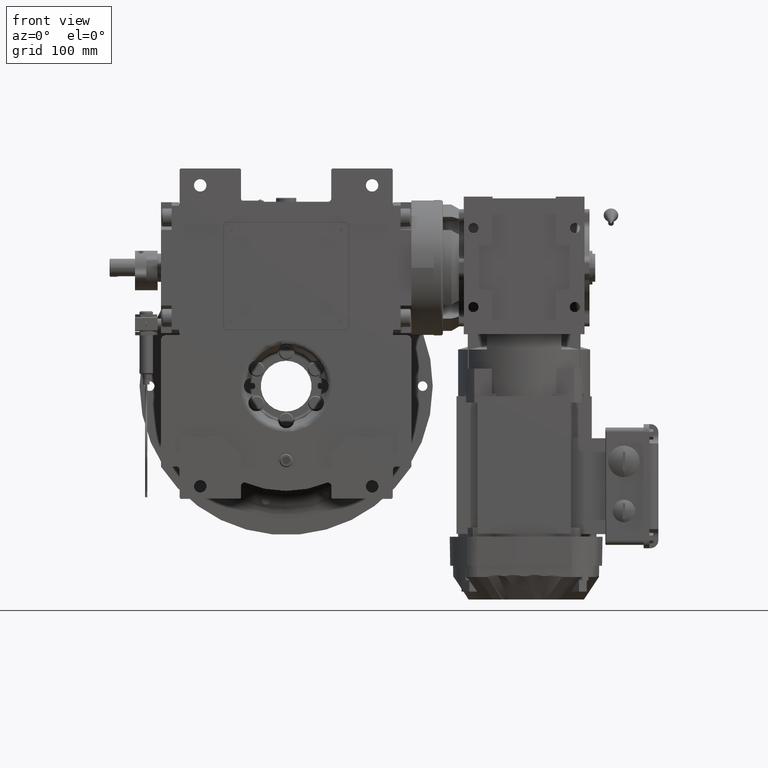
[diagram: clean part render]
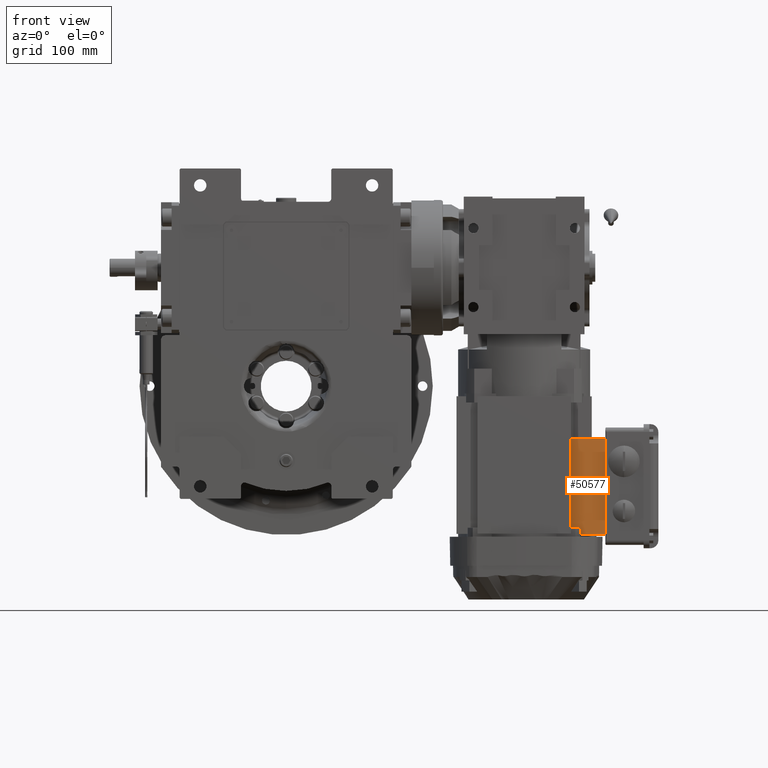
[diagram: same view with one face highlighted and labeled with its STEP entity id]
A machine part, front view. The second image highlights one B-rep face of the part: STEP entity #50577.
In plain terms, the highlighted planar face has unit normal (0, -1, 0).
Its self-contained STEP definition (entity closure, byte-faithful):
#643 = DIRECTION ( 'NONE',  ( -1.000000000000000000, -2.142138711528199616E-47, 9.045052288857892805E-15 ) ) ;
#5135 = CARTESIAN_POINT ( 'NONE',  ( 230.4999999999999716, 0.000000000000000000, -12.50000000000201261 ) ) ;
#10663 = EDGE_CURVE ( 'NONE', #81918, #22558, #103866, .T. ) ;
#10924 = VECTOR ( 'NONE', #104668, 1000.000000000000000 ) ;
#13476 = CARTESIAN_POINT ( 'NONE',  ( 151.1999999999999886, -71.99999999999998579, -12.50000000000131983 ) ) ;
#13555 = CARTESIAN_POINT ( 'NONE',  ( 151.1999999999999886, -71.99999999999998579, -12.50000000000131983 ) ) ;
#14128 = CARTESIAN_POINT ( 'NONE',  ( 236.1999999999999602, -71.99999999999998579, -12.50000000000201261 ) ) ;
#15934 = ORIENTED_EDGE ( 'NONE', *, *, #59798, .T. ) ;
#16284 = DIRECTION ( 'NONE',  ( -1.000000000000000000, 5.700474959459869370E-31, 9.045052288857892805E-15 ) ) ;
#16685 = CARTESIAN_POINT ( 'NONE',  ( 151.1999999999999886, -71.99999999999998579, -12.50000000000131983 ) ) ;
#17650 = DIRECTION ( 'NONE',  ( -1.000000000000000000, 4.981552280173139555E-17, 9.045052288857892805E-15 ) ) ;
#20315 = VERTEX_POINT ( 'NONE', #53225 ) ;
#22558 = VERTEX_POINT ( 'NONE', #40194 ) ;
#25938 = CARTESIAN_POINT ( 'NONE',  ( 230.4999999999999716, -50.01792592856238429, -12.50000000000201261 ) ) ;
#30786 = ORIENTED_EDGE ( 'NONE', *, *, #10663, .F. ) ;
#31745 = ORIENTED_EDGE ( 'NONE', *, *, #52532, .T. ) ;
#35350 = CARTESIAN_POINT ( 'NONE',  ( 236.1999999999999602, -50.01792592856238429, -12.50000000000201261 ) ) ;
#40194 = CARTESIAN_POINT ( 'NONE',  ( 230.4999999999999716, -50.01792592856238429, -12.50000000000201261 ) ) ;
#45944 = EDGE_CURVE ( 'NONE', #62745, #96845, #47859, .T. ) ;
#47859 = LINE ( 'NONE', #58321, #102946 ) ;
#49554 = CARTESIAN_POINT ( 'NONE',  ( 151.1999999999999886, -41.50000000000000711, -12.50000000000131983 ) ) ;
#49662 = EDGE_CURVE ( 'NONE', #68791, #81918, #98406, .T. ) ;
#50577 = ADVANCED_FACE ( 'NONE', ( #71033 ), #104235, .T. ) ;
#50962 = LINE ( 'NONE', #16685, #70055 ) ;
#52532 = EDGE_CURVE ( 'NONE', #20315, #96845, #50962, .T. ) ;
#53225 = CARTESIAN_POINT ( 'NONE',  ( 151.1999999999999886, -71.99999999999998579, -12.50000000000131983 ) ) ;
#55501 = EDGE_CURVE ( 'NONE', #68791, #20315, #106915, .T. ) ;
#56140 = DIRECTION ( 'NONE',  ( -9.045052288857892805E-15, -6.640859809433176613E-48, -1.000000000000000000 ) ) ;
#56439 = ORIENTED_EDGE ( 'NONE', *, *, #49662, .F. ) ;
#57146 = CARTESIAN_POINT ( 'NONE',  ( 230.4999999999999716, -41.50000000000000711, -12.50000000000201261 ) ) ;
#58321 = CARTESIAN_POINT ( 'NONE',  ( 151.1999999999999886, -41.50000000000000711, -12.50000000000131983 ) ) ;
#59798 = EDGE_CURVE ( 'NONE', #62745, #22558, #96363, .T. ) ;
#60337 = VECTOR ( 'NONE', #17650, 1000.000000000000000 ) ;
#62457 = ORIENTED_EDGE ( 'NONE', *, *, #45944, .F. ) ;
#62745 = VERTEX_POINT ( 'NONE', #57146 ) ;
#64953 = EDGE_LOOP ( 'NONE', ( #62457, #15934, #30786, #56439, #84041, #31745 ) ) ;
#68791 = VERTEX_POINT ( 'NONE', #14128 ) ;
#70055 = VECTOR ( 'NONE', #84128, 1000.000000000000000 ) ;
#71033 = FACE_OUTER_BOUND ( 'NONE', #64953, .T. ) ;
#72328 = VECTOR ( 'NONE', #88108, 1000.000000000000000 ) ;
#72967 = CARTESIAN_POINT ( 'NONE',  ( 236.1999999999999602, -71.99999999999998579, -12.50000000000201261 ) ) ;
#73504 = DIRECTION ( 'NONE',  ( 2.142138711528201561E-47, 1.000000000000000000, 6.640859809432788890E-48 ) ) ;
#81918 = VERTEX_POINT ( 'NONE', #35350 ) ;
#84041 = ORIENTED_EDGE ( 'NONE', *, *, #55501, .T. ) ;
#84128 = DIRECTION ( 'NONE',  ( 2.142138711528201561E-47, 1.000000000000000000, 6.640859809432788890E-48 ) ) ;
#88108 = DIRECTION ( 'NONE',  ( -1.000000000000000000, -2.142138711528199616E-47, 9.045052288857892805E-15 ) ) ;
#91003 = AXIS2_PLACEMENT_3D ( 'NONE', #13555, #56140, #643 ) ;
#96363 = LINE ( 'NONE', #5135, #10924 ) ;
#96845 = VERTEX_POINT ( 'NONE', #49554 ) ;
#98406 = LINE ( 'NONE', #72967, #99686 ) ;
#99686 = VECTOR ( 'NONE', #73504, 1000.000000000000000 ) ;
#102946 = VECTOR ( 'NONE', #16284, 1000.000000000000000 ) ;
#103866 = LINE ( 'NONE', #25938, #60337 ) ;
#104235 = PLANE ( 'NONE',  #91003 ) ;
#104668 = DIRECTION ( 'NONE',  ( -6.123233995736769734E-17, -1.000000000000000000, 5.538497166835121215E-31 ) ) ;
#106915 = LINE ( 'NONE', #13476, #72328 ) ;